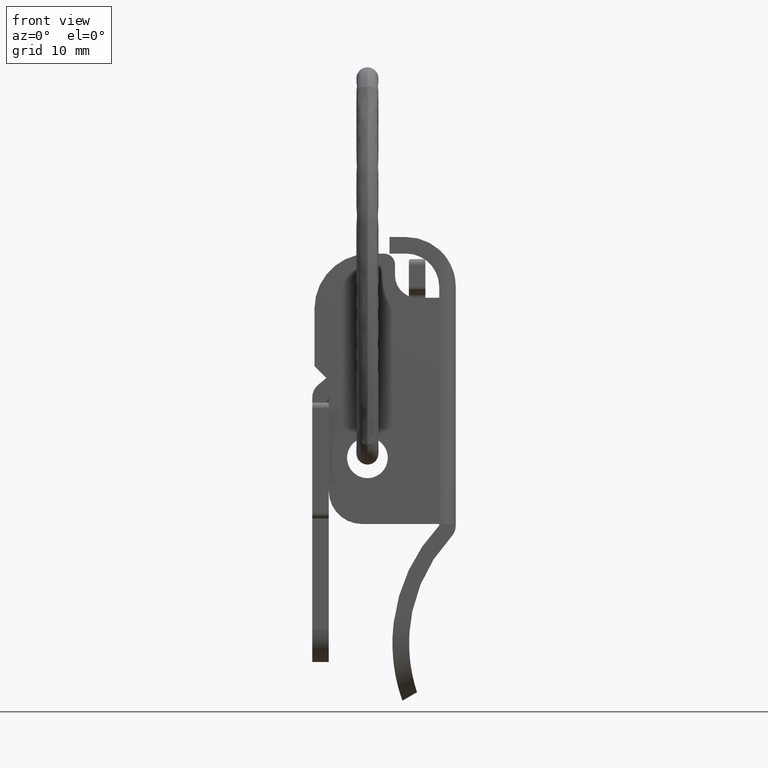
[diagram: clean part render]
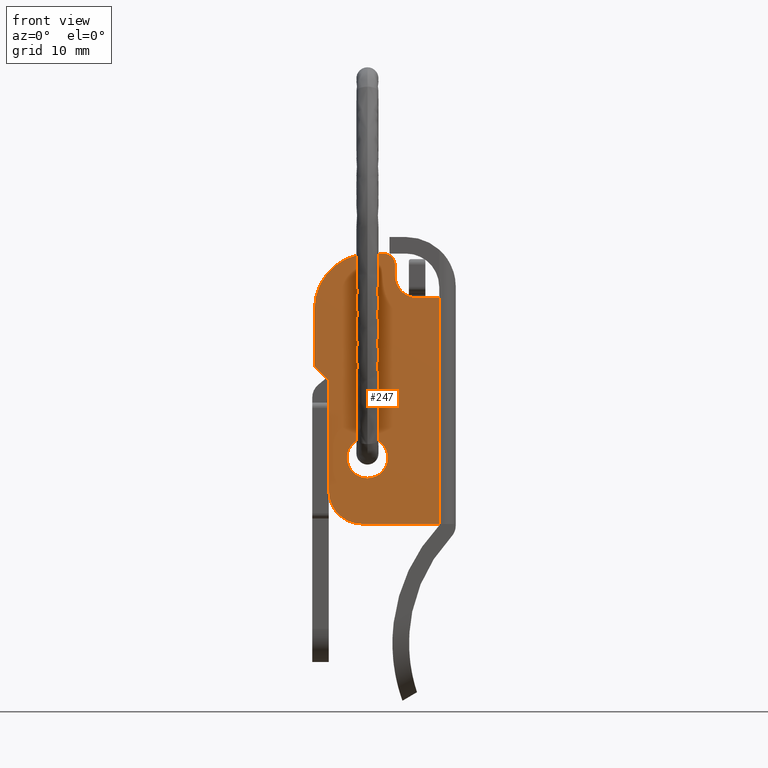
[diagram: same view with one face highlighted and labeled with its STEP entity id]
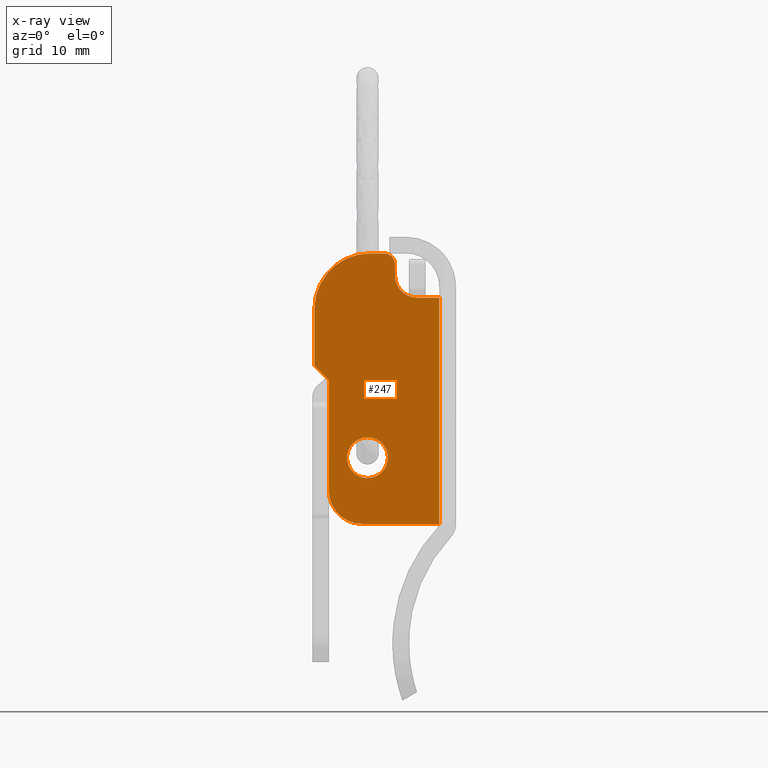
[diagram: x-ray of the same camera — body ghosted, the highlighted face saturated]
A machine part, front view. The second image highlights one B-rep face of the part: STEP entity #247.
The next image is the same camera in x-ray: the body ghosted, the highlighted face saturated — about 0% of this face is hidden behind the body in this view.
In plain terms, the highlighted planar face has unit normal (0, 1, 0).
Its self-contained STEP definition (entity closure, byte-faithful):
#247=ADVANCED_FACE('',(#1246,#1247),#1245,.F.);
#1245=PLANE('',#2038);
#1246=FACE_OUTER_BOUND('',#2039,.T.);
#1247=FACE_BOUND('',#2040,.T.);
#2035=CARTESIAN_POINT('',(-5.93000000000E+00,0.00000000000E+00,-8.45000000000E+00));
#2036=DIRECTION('',(-0.00000000000E+00,1.00000000000E+00,0.00000000000E+00));
#2037=DIRECTION('',(0.00000000000E+00,0.00000000000E+00,1.00000000000E+00));
#2038=AXIS2_PLACEMENT_3D('',#2035,#2036,#2037);
#2039=EDGE_LOOP('',(#2608,#2609,#2610,#2611,#2612,#2613,#2614,#2615,#2616,#2617,#2618,#2619,#2620));
#2040=EDGE_LOOP('',(#2621,#2622,#2623));
#2608=ORIENTED_EDGE('',*,*,#2965,.T.);
#2609=ORIENTED_EDGE('',*,*,#2966,.T.);
#2610=ORIENTED_EDGE('',*,*,#2945,.F.);
#2611=ORIENTED_EDGE('',*,*,#2942,.T.);
#2612=ORIENTED_EDGE('',*,*,#2939,.F.);
#2613=ORIENTED_EDGE('',*,*,#2936,.T.);
#2614=ORIENTED_EDGE('',*,*,#2933,.T.);
#2615=ORIENTED_EDGE('',*,*,#2930,.T.);
#2616=ORIENTED_EDGE('',*,*,#2927,.T.);
#2617=ORIENTED_EDGE('',*,*,#2924,.T.);
#2618=ORIENTED_EDGE('',*,*,#2921,.T.);
#2619=ORIENTED_EDGE('',*,*,#2917,.T.);
#2620=ORIENTED_EDGE('',*,*,#2967,.T.);
#2621=ORIENTED_EDGE('',*,*,#2968,.F.);
#2622=ORIENTED_EDGE('',*,*,#2969,.F.);
#2623=ORIENTED_EDGE('',*,*,#2970,.F.);
#2917=EDGE_CURVE('',#4515,#4516,#4517,.T.);
#2921=EDGE_CURVE('',#4543,#4515,#4544,.T.);
#2924=EDGE_CURVE('',#4563,#4543,#4564,.T.);
#2927=EDGE_CURVE('',#4583,#4563,#4584,.T.);
#2930=EDGE_CURVE('',#4603,#4583,#4604,.T.);
#2933=EDGE_CURVE('',#4623,#4603,#4624,.T.);
#2936=EDGE_CURVE('',#4643,#4623,#4644,.T.);
#2939=EDGE_CURVE('',#4643,#4663,#4664,.T.);
#2942=EDGE_CURVE('',#4683,#4663,#4684,.T.);
#2945=EDGE_CURVE('',#4683,#4703,#4704,.T.);
#2965=EDGE_CURVE('',#4833,#4834,#4835,.T.);
#2966=EDGE_CURVE('',#4834,#4703,#4841,.T.);
#2967=EDGE_CURVE('',#4516,#4833,#4847,.T.);
#2968=EDGE_CURVE('',#4853,#4854,#4855,.T.);
#2969=EDGE_CURVE('',#4861,#4853,#4862,.T.);
#2970=EDGE_CURVE('',#4854,#4861,#4868,.T.);
#4515=VERTEX_POINT('',#5987);
#4516=VERTEX_POINT('',#5988);
#4517=LINE('',#5989,#5990);
#4543=VERTEX_POINT('',#6003);
#4544=LINE('',#6004,#6005);
#4563=VERTEX_POINT('',#6014);
#4564=LINE('',#6015,#6016);
#4583=VERTEX_POINT('',#6025);
#4584=CIRCLE('',#6029,5.00000000000E+00);
#4603=VERTEX_POINT('',#6038);
#4604=LINE('',#6039,#6040);
#4623=VERTEX_POINT('',#6049);
#4624=CIRCLE('',#6053,1.00000000000E+00);
#4643=VERTEX_POINT('',#6062);
#4644=LINE('',#6063,#6064);
#4663=VERTEX_POINT('',#6073);
#4664=CIRCLE('',#6077,2.00000000000E+00);
#4683=VERTEX_POINT('',#6086);
#4684=LINE('',#6087,#6088);
#4703=VERTEX_POINT('',#6097);
#4704=CIRCLE('',#6101,1.50000000000E+00);
#4833=VERTEX_POINT('',#6171);
#4834=VERTEX_POINT('',#6172);
#4835=LINE('',#6173,#6174);
#4841=LINE('',#6176,#6177);
#4847=CIRCLE('',#6182,3.00000000000E+00);
#4853=VERTEX_POINT('',#6183);
#4854=VERTEX_POINT('',#6184);
#4855=CIRCLE('',#6188,1.85000000000E+00);
#4861=VERTEX_POINT('',#6189);
#4862=CIRCLE('',#6193,1.85000000000E+00);
#4868=CIRCLE('',#6197,1.85000000000E+00);
#5987=CARTESIAN_POINT('',(-3.50000000000E+00,0.00000000000E+00,7.00000000000E+00));
#5988=CARTESIAN_POINT('',(-3.50000000000E+00,0.00000000000E+00,-3.00000000000E+00));
#5989=CARTESIAN_POINT('',(-3.50000000000E+00,0.00000000000E+00,7.00000000000E+00));
#5990=VECTOR('',#5991,1.00000000000E+01);
#5991=DIRECTION('',(0.00000000000E+00,0.00000000000E+00,-1.00000000000E+00));
#6003=CARTESIAN_POINT('',(-4.80000000000E+00,0.00000000000E+00,8.30000000000E+00));
#6004=CARTESIAN_POINT('',(-4.80000000000E+00,0.00000000000E+00,8.30000000000E+00));
#6005=VECTOR('',#6006,1.83847763108E+00);
#6006=DIRECTION('',(7.07106781187E-01,0.00000000000E+00,-7.07106781186E-01));
#6014=CARTESIAN_POINT('',(-4.80000000000E+00,0.00000000000E+00,1.35000000000E+01));
#6015=CARTESIAN_POINT('',(-4.80000000000E+00,0.00000000000E+00,1.35000000000E+01));
#6016=VECTOR('',#6017,5.20000000000E+00);
#6017=DIRECTION('',(0.00000000000E+00,0.00000000000E+00,-1.00000000000E+00));
#6025=CARTESIAN_POINT('',(2.00000000000E-01,0.00000000000E+00,1.85000000000E+01));
#6026=CARTESIAN_POINT('',(2.00000000000E-01,0.00000000000E+00,1.35000000000E+01));
#6027=DIRECTION('',(0.00000000000E+00,-1.00000000000E+00,0.00000000000E+00));
#6028=DIRECTION('',(-0.00000000000E+00,-0.00000000000E+00,-1.00000000000E+00));
#6029=AXIS2_PLACEMENT_3D('',#6026,#6027,#6028);
#6038=CARTESIAN_POINT('',(1.50000000000E+00,0.00000000000E+00,1.85000000000E+01));
#6039=CARTESIAN_POINT('',(1.50000000000E+00,0.00000000000E+00,1.85000000000E+01));
#6040=VECTOR('',#6041,1.30000000000E+00);
#6041=DIRECTION('',(-1.00000000000E+00,0.00000000000E+00,0.00000000000E+00));
#6049=CARTESIAN_POINT('',(2.50000000000E+00,0.00000000000E+00,1.75000000000E+01));
#6050=CARTESIAN_POINT('',(1.50000000000E+00,0.00000000000E+00,1.75000000000E+01));
#6051=DIRECTION('',(0.00000000000E+00,-1.00000000000E+00,0.00000000000E+00));
#6052=DIRECTION('',(-0.00000000000E+00,-0.00000000000E+00,-1.00000000000E+00));
#6053=AXIS2_PLACEMENT_3D('',#6050,#6051,#6052);
#6062=CARTESIAN_POINT('',(2.50000000000E+00,0.00000000000E+00,1.65000000000E+01));
#6063=CARTESIAN_POINT('',(2.50000000000E+00,0.00000000000E+00,1.65000000000E+01));
#6064=VECTOR('',#6065,1.00000000000E+00);
#6065=DIRECTION('',(0.00000000000E+00,0.00000000000E+00,1.00000000000E+00));
#6073=CARTESIAN_POINT('',(4.50000000000E+00,0.00000000000E+00,1.45000000000E+01));
#6074=CARTESIAN_POINT('',(4.50000000000E+00,0.00000000000E+00,1.65000000000E+01));
#6075=DIRECTION('',(0.00000000000E+00,-1.00000000000E+00,0.00000000000E+00));
#6076=DIRECTION('',(-0.00000000000E+00,-0.00000000000E+00,-1.00000000000E+00));
#6077=AXIS2_PLACEMENT_3D('',#6074,#6075,#6076);
#6086=CARTESIAN_POINT('',(6.45803989155E+00,0.00000000000E+00,1.45000000000E+01));
#6087=CARTESIAN_POINT('',(6.45803989155E+00,0.00000000000E+00,1.45000000000E+01));
#6088=VECTOR('',#6089,1.95803989155E+00);
#6089=DIRECTION('',(-1.00000000000E+00,0.00000000000E+00,0.00000000000E+00));
#6097=CARTESIAN_POINT('',(6.50000000000E+00,0.00000000000E+00,1.45005869984E+01));
#6098=CARTESIAN_POINT('',(6.45803989155E+00,0.00000000000E+00,1.60000000000E+01));
#6099=DIRECTION('',(0.00000000000E+00,-1.00000000000E+00,0.00000000000E+00));
#6100=DIRECTION('',(-0.00000000000E+00,-0.00000000000E+00,-1.00000000000E+00));
#6101=AXIS2_PLACEMENT_3D('',#6098,#6099,#6100);
#6171=CARTESIAN_POINT('',(-5.00000000000E-01,0.00000000000E+00,-6.00000000000E+00));
#6172=CARTESIAN_POINT('',(6.50000000000E+00,0.00000000000E+00,-6.00000000000E+00));
#6173=CARTESIAN_POINT('',(-5.00000000000E-01,0.00000000000E+00,-6.00000000000E+00));
#6174=VECTOR('',#6175,7.00000000000E+00);
#6175=DIRECTION('',(1.00000000000E+00,0.00000000000E+00,0.00000000000E+00));
#6176=CARTESIAN_POINT('',(6.50000000000E+00,0.00000000000E+00,-6.00000000000E+00));
#6177=VECTOR('',#6178,2.05005869984E+01);
#6178=DIRECTION('',(0.00000000000E+00,0.00000000000E+00,1.00000000000E+00));
#6179=CARTESIAN_POINT('',(-5.00000000000E-01,0.00000000000E+00,-3.00000000000E+00));
#6180=DIRECTION('',(0.00000000000E+00,-1.00000000000E+00,0.00000000000E+00));
#6181=DIRECTION('',(-0.00000000000E+00,-0.00000000000E+00,-1.00000000000E+00));
#6182=AXIS2_PLACEMENT_3D('',#6179,#6180,#6181);
#6183=CARTESIAN_POINT('',(7.37347207232E-12,0.00000000000E+00,-1.85000000000E+00));
#6184=CARTESIAN_POINT('',(1.85000000000E+00,0.00000000000E+00,0.00000000000E+00));
#6185=CARTESIAN_POINT('',(0.00000000000E+00,0.00000000000E+00,0.00000000000E+00));
#6186=DIRECTION('',(0.00000000000E+00,-1.00000000000E+00,0.00000000000E+00));
#6187=DIRECTION('',(1.00000000000E+00,0.00000000000E+00,-1.22460635382E-16));
#6188=AXIS2_PLACEMENT_3D('',#6185,#6186,#6187);
#6189=CARTESIAN_POINT('',(-1.91994396183E-04,0.00000000000E+00,1.84999999004E+00));
#6190=CARTESIAN_POINT('',(0.00000000000E+00,0.00000000000E+00,0.00000000000E+00));
#6191=DIRECTION('',(0.00000000000E+00,-1.00000000000E+00,0.00000000000E+00));
#6192=DIRECTION('',(1.00000000000E+00,0.00000000000E+00,-1.22460635382E-16));
#6193=AXIS2_PLACEMENT_3D('',#6190,#6191,#6192);
#6194=CARTESIAN_POINT('',(0.00000000000E+00,0.00000000000E+00,0.00000000000E+00));
#6195=DIRECTION('',(0.00000000000E+00,-1.00000000000E+00,0.00000000000E+00));
#6196=DIRECTION('',(1.00000000000E+00,0.00000000000E+00,-1.22460635382E-16));
#6197=AXIS2_PLACEMENT_3D('',#6194,#6195,#6196);